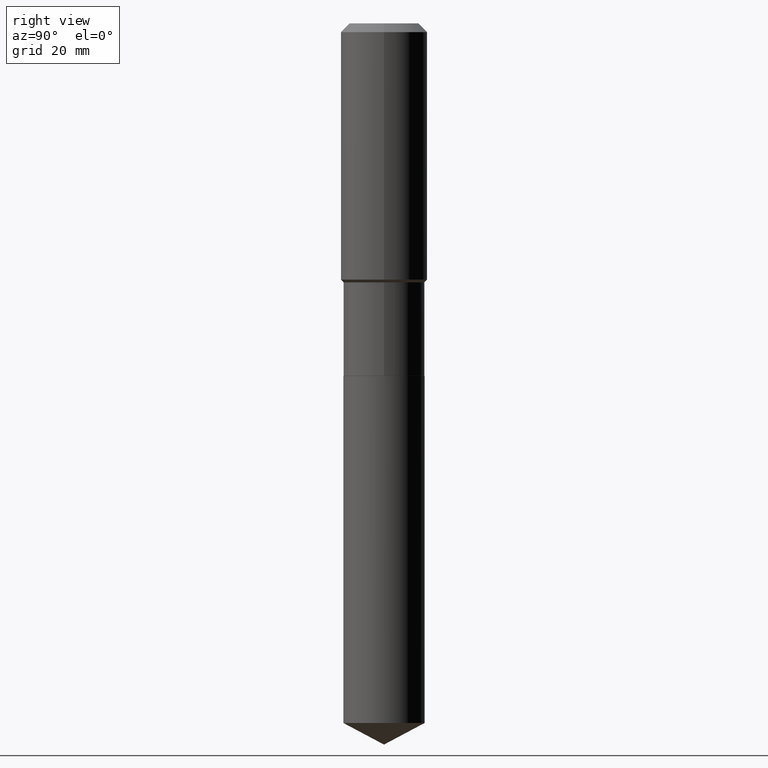
[diagram: clean part render]
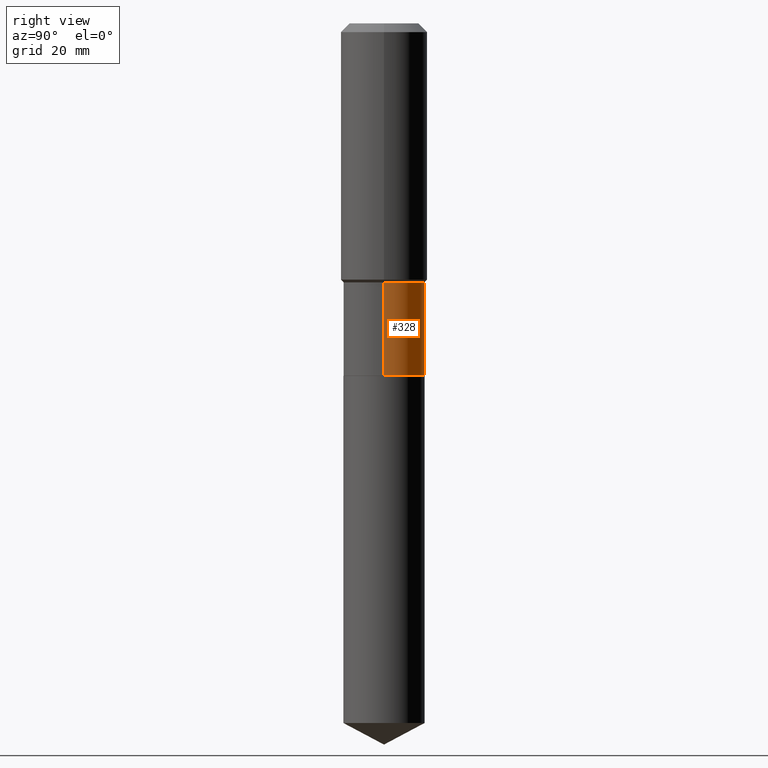
[diagram: same view with one face highlighted and labeled with its STEP entity id]
A machine part, right view. The second image highlights one B-rep face of the part: STEP entity #328.
In plain terms, the highlighted cylindrical surface (partial cylindrical patch) has radius 7.5006 mm, axis along (-0, 0, 1).
Its self-contained STEP definition (entity closure, byte-faithful):
#7 = DIRECTION ( 'NONE',  ( -2.445468806185136877E-29, 3.491481338843145188E-15, 1.000000000000000000 ) ) ;
#18 = CARTESIAN_POINT ( 'NONE',  ( 0.2953000000000000624, -1.099537303228482880E-14, -2.558599999999999763 ) ) ;
#21 = CARTESIAN_POINT ( 'NONE',  ( -0.2953000000000000069, 2.098232698699575898E-15, -1.452561532152273562E-29 ) ) ;
#30 = DIRECTION ( 'NONE',  ( 1.000000000000000000, -6.982962677686266711E-15, 4.876176775795935793E-29 ) ) ;
#32 = CARTESIAN_POINT ( 'NONE',  ( 0.000000000000000000, 0.000000000000000000, 0.000000000000000000 ) ) ;
#46 = EDGE_CURVE ( 'NONE', #114, #374, #487, .T. ) ;
#49 = ORIENTED_EDGE ( 'NONE', *, *, #46, .F. ) ;
#51 = CARTESIAN_POINT ( 'NONE',  ( 0.2952999999999999514, -8.625704647611984399E-15, -1.879900000000000349 ) ) ;
#59 = DIRECTION ( 'NONE',  ( -2.445468806185136597E-29, 3.491481338843145583E-15, 1.000000000000000000 ) ) ;
#66 = DIRECTION ( 'NONE',  ( 1.000000000000000000, -6.982962677686269077E-15, 0.000000000000000000 ) ) ;
#113 = LINE ( 'NONE', #228, #354 ) ;
#114 = VERTEX_POINT ( 'NONE', #51 ) ;
#132 = LINE ( 'NONE', #21, #155 ) ;
#137 = ORIENTED_EDGE ( 'NONE', *, *, #167, .T. ) ;
#140 = FACE_OUTER_BOUND ( 'NONE', #181, .T. ) ;
#155 = VECTOR ( 'NONE', #284, 39.37007874015748143 ) ;
#157 = CARTESIAN_POINT ( 'NONE',  ( -0.2952999999999999514, -5.650237262528075742E-15, -1.879900000000000349 ) ) ;
#158 = VERTEX_POINT ( 'NONE', #18 ) ;
#163 = EDGE_CURVE ( 'NONE', #363, #374, #132, .T. ) ;
#167 = EDGE_CURVE ( 'NONE', #158, #363, #201, .T. ) ;
#172 = ORIENTED_EDGE ( 'NONE', *, *, #451, .F. ) ;
#177 = AXIS2_PLACEMENT_3D ( 'NONE', #430, #59, #66 ) ;
#181 = EDGE_LOOP ( 'NONE', ( #137, #200, #49, #172 ) ) ;
#200 = ORIENTED_EDGE ( 'NONE', *, *, #163, .T. ) ;
#201 = CIRCLE ( 'NONE', #177, 0.2953000000000000624 ) ;
#228 = CARTESIAN_POINT ( 'NONE',  ( 0.2953000000000000069, -2.062068878720754563E-15, 1.439935001892539937E-29 ) ) ;
#234 = AXIS2_PLACEMENT_3D ( 'NONE', #245, #289, #282 ) ;
#245 = CARTESIAN_POINT ( 'NONE',  ( 4.597236808747439228E-29, -6.563635768891230231E-15, -1.879900000000000349 ) ) ;
#282 = DIRECTION ( 'NONE',  ( 1.000000000000000000, -6.982962677686265133E-15, 0.000000000000000000 ) ) ;
#284 = DIRECTION ( 'NONE',  ( -2.445468806185136877E-29, 3.491481338843145188E-15, 1.000000000000000000 ) ) ;
#289 = DIRECTION ( 'NONE',  ( -2.445468806185136597E-29, 3.491481338843145583E-15, 1.000000000000000000 ) ) ;
#296 = DIRECTION ( 'NONE',  ( -2.445468806185136597E-29, 3.491481338843145583E-15, 1.000000000000000000 ) ) ;
#328 = ADVANCED_FACE ( 'NONE', ( #140 ), #371, .T. ) ;
#346 = CARTESIAN_POINT ( 'NONE',  ( -0.2953000000000000624, -5.650237262528074953E-15, -2.558599999999999763 ) ) ;
#354 = VECTOR ( 'NONE', #7, 39.37007874015748143 ) ;
#363 = VERTEX_POINT ( 'NONE', #346 ) ;
#371 = CYLINDRICAL_SURFACE ( 'NONE', #377, 0.2953000000000000069 ) ;
#374 = VERTEX_POINT ( 'NONE', #157 ) ;
#377 = AXIS2_PLACEMENT_3D ( 'NONE', #32, #296, #30 ) ;
#430 = CARTESIAN_POINT ( 'NONE',  ( 6.256976487505290023E-29, -8.933304153564073050E-15, -2.558599999999999763 ) ) ;
#451 = EDGE_CURVE ( 'NONE', #158, #114, #113, .T. ) ;
#487 = CIRCLE ( 'NONE', #234, 0.2952999999999999514 ) ;